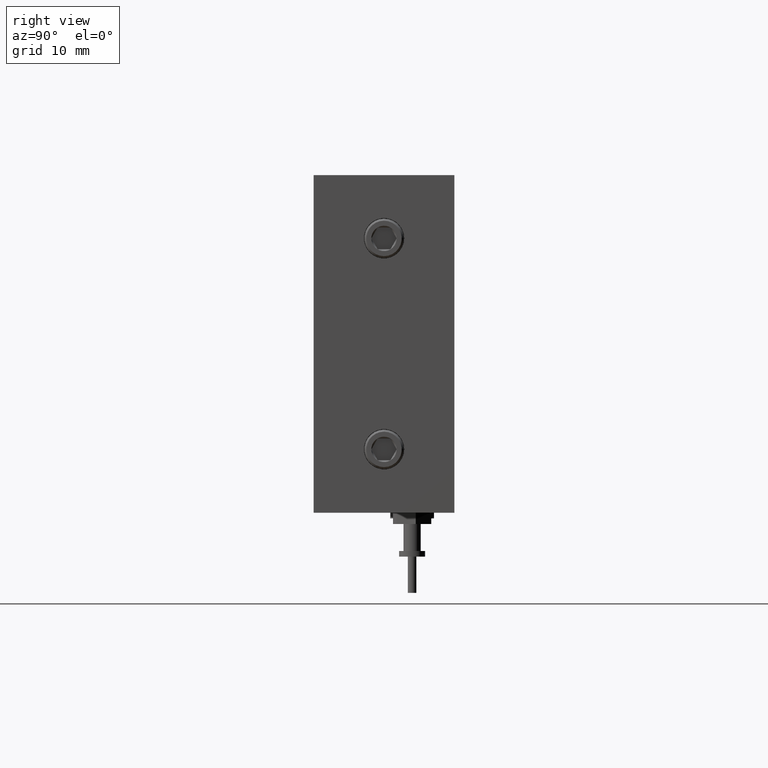
[diagram: clean part render]
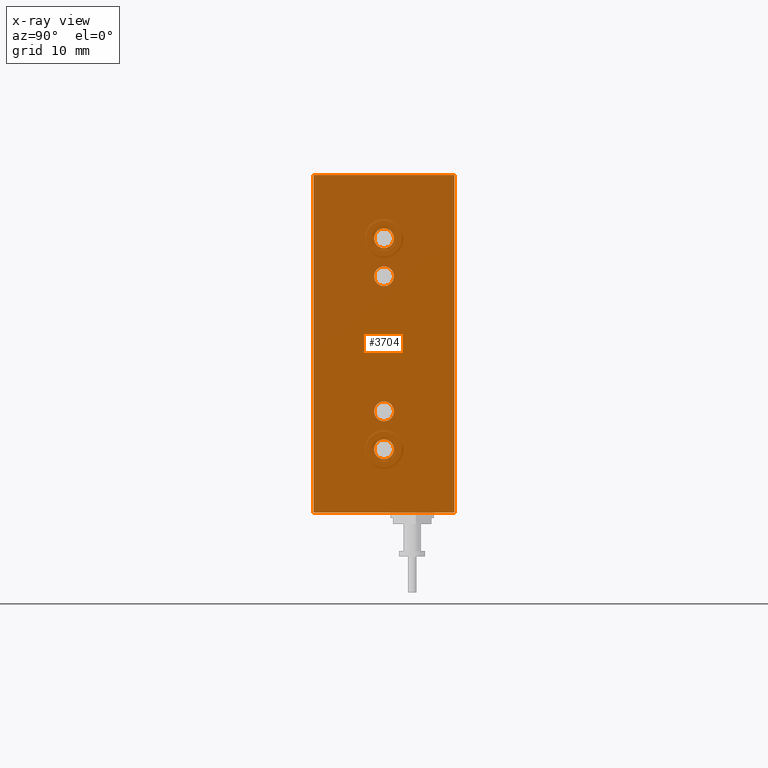
[diagram: x-ray — body ghosted, one internal face saturated and labeled with its STEP entity id]
A machine part, right view, then the same camera in x-ray: the body is ghosted and one INTERNAL B-rep face — a face not visible from any outside direction — is saturated and labeled: STEP entity #3704.
In plain terms, the highlighted planar face has unit normal (-1, 0, 0).
Its self-contained STEP definition (entity closure, byte-faithful):
#49 = VECTOR ( 'NONE', #12817, 39.37007874015748100 ) ;
#237 = VERTEX_POINT ( 'NONE', #6164 ) ;
#499 = DIRECTION ( 'NONE',  ( 0.0000000000000000000, 0.0000000000000000000, -1.000000000000000000 ) ) ;
#500 = FACE_BOUND ( 'NONE', #2911, .T. ) ;
#645 = AXIS2_PLACEMENT_3D ( 'NONE', #9324, #8239, #13479 ) ;
#700 = DIRECTION ( 'NONE',  ( 1.000000000000000000, -0.0000000000000000000, -0.0000000000000000000 ) ) ;
#703 = CARTESIAN_POINT ( 'NONE',  ( 0.5999999999999998700, 0.2499999999999999700, -0.2399999999999999900 ) ) ;
#764 = EDGE_CURVE ( 'NONE', #7626, #3858, #12314, .T. ) ;
#1061 = DIRECTION ( 'NONE',  ( 0.0000000000000000000, 0.0000000000000000000, -1.000000000000000000 ) ) ;
#1079 = ORIENTED_EDGE ( 'NONE', *, *, #8695, .F. ) ;
#1399 = VECTOR ( 'NONE', #13317, 39.37007874015748100 ) ;
#1448 = AXIS2_PLACEMENT_3D ( 'NONE', #10185, #1925, #4973 ) ;
#1542 = VECTOR ( 'NONE', #499, 39.37007874015748100 ) ;
#1565 = VERTEX_POINT ( 'NONE', #5831 ) ;
#1607 = EDGE_CURVE ( 'NONE', #10866, #10165, #11164, .T. ) ;
#1751 = DIRECTION ( 'NONE',  ( 1.000000000000000000, -0.0000000000000000000, -0.0000000000000000000 ) ) ;
#1884 = CIRCLE ( 'NONE', #13360, 0.03499999999999996900 ) ;
#1925 = DIRECTION ( 'NONE',  ( 1.000000000000000000, -0.0000000000000000000, -0.0000000000000000000 ) ) ;
#2144 = DIRECTION ( 'NONE',  ( 0.0000000000000000000, 0.0000000000000000000, -1.000000000000000000 ) ) ;
#2301 = DIRECTION ( 'NONE',  ( 1.000000000000000000, -0.0000000000000000000, -0.0000000000000000000 ) ) ;
#2522 = CIRCLE ( 'NONE', #8430, 0.03499999999999996900 ) ;
#2599 = ORIENTED_EDGE ( 'NONE', *, *, #6001, .F. ) ;
#2877 = DIRECTION ( 'NONE',  ( 1.000000000000000000, -0.0000000000000000000, -0.0000000000000000000 ) ) ;
#2911 = EDGE_LOOP ( 'NONE', ( #5608, #5330 ) ) ;
#3462 = CARTESIAN_POINT ( 'NONE',  ( 0.5999999999999999800, 0.5000000000000000000, 0.5999999999999996400 ) ) ;
#3627 = EDGE_CURVE ( 'NONE', #3858, #7626, #12716, .T. ) ;
#3704 = ADVANCED_FACE ( 'NONE', ( #9431, #12389, #3939, #500, #13363 ), #6249, .F. ) ;
#3790 = CARTESIAN_POINT ( 'NONE',  ( 0.5999999999999998700, 0.2500000000000001100, 0.3750000000000000600 ) ) ;
#3840 = CARTESIAN_POINT ( 'NONE',  ( 0.5999999999999998700, 0.2499999999999999700, -0.3400000000000000800 ) ) ;
#3858 = VERTEX_POINT ( 'NONE', #4206 ) ;
#3939 = FACE_BOUND ( 'NONE', #9576, .T. ) ;
#4205 = LINE ( 'NONE', #3462, #4529 ) ;
#4206 = CARTESIAN_POINT ( 'NONE',  ( 0.5999999999999998700, 0.2499999999999999700, -0.2749999999999999700 ) ) ;
#4235 = ORIENTED_EDGE ( 'NONE', *, *, #11667, .T. ) ;
#4529 = VECTOR ( 'NONE', #7614, 39.37007874015748100 ) ;
#4578 = CARTESIAN_POINT ( 'NONE',  ( 0.5999999999999998700, 0.2500000000000000000, 0.2749999999999999700 ) ) ;
#4726 = CARTESIAN_POINT ( 'NONE',  ( 0.5999999999999998700, 0.2499999999999999700, -0.2050000000000000400 ) ) ;
#4950 = VERTEX_POINT ( 'NONE', #11687 ) ;
#4973 = DIRECTION ( 'NONE',  ( 0.0000000000000000000, 0.0000000000000000000, -1.000000000000000000 ) ) ;
#5205 = DIRECTION ( 'NONE',  ( 0.0000000000000000000, 0.0000000000000000000, -1.000000000000000000 ) ) ;
#5213 = EDGE_CURVE ( 'NONE', #11670, #4950, #8381, .T. ) ;
#5238 = CARTESIAN_POINT ( 'NONE',  ( 0.5999999999999998700, 0.2499999999999999700, -0.2399999999999999900 ) ) ;
#5311 = LINE ( 'NONE', #9107, #1399 ) ;
#5330 = ORIENTED_EDGE ( 'NONE', *, *, #1607, .F. ) ;
#5432 = CARTESIAN_POINT ( 'NONE',  ( 0.5999999999999998700, 0.2499999999999999700, -0.3750000000000000600 ) ) ;
#5608 = ORIENTED_EDGE ( 'NONE', *, *, #12433, .F. ) ;
#5638 = CIRCLE ( 'NONE', #12658, 0.03499999999999996900 ) ;
#5831 = CARTESIAN_POINT ( 'NONE',  ( 0.5999999999999999800, 0.0000000000000000000, -0.6000000000000002000 ) ) ;
#5870 = CARTESIAN_POINT ( 'NONE',  ( 0.5999999999999998700, 0.2500000000000000000, 0.2399999999999999900 ) ) ;
#5984 = VERTEX_POINT ( 'NONE', #6952 ) ;
#6001 = EDGE_CURVE ( 'NONE', #4950, #11670, #2522, .T. ) ;
#6090 = DIRECTION ( 'NONE',  ( 1.000000000000000000, -0.0000000000000000000, -0.0000000000000000000 ) ) ;
#6129 = CIRCLE ( 'NONE', #1448, 0.03499999999999996900 ) ;
#6164 = CARTESIAN_POINT ( 'NONE',  ( 0.5999999999999998700, 0.2499999999999999700, -0.4099999999999999800 ) ) ;
#6249 = PLANE ( 'NONE',  #645 ) ;
#6558 = LINE ( 'NONE', #10733, #49 ) ;
#6775 = ORIENTED_EDGE ( 'NONE', *, *, #764, .F. ) ;
#6952 = CARTESIAN_POINT ( 'NONE',  ( 0.5999999999999999800, 0.0000000000000000000, 0.5999999999999996400 ) ) ;
#6980 = AXIS2_PLACEMENT_3D ( 'NONE', #5238, #12596, #2144 ) ;
#7002 = CARTESIAN_POINT ( 'NONE',  ( 0.5999999999999999800, 0.5000000000000000000, -0.6000000000000002000 ) ) ;
#7306 = ORIENTED_EDGE ( 'NONE', *, *, #3627, .F. ) ;
#7605 = AXIS2_PLACEMENT_3D ( 'NONE', #703, #1751, #9007 ) ;
#7614 = DIRECTION ( 'NONE',  ( -0.0000000000000000000, -1.000000000000000000, -0.0000000000000000000 ) ) ;
#7626 = VERTEX_POINT ( 'NONE', #4726 ) ;
#7711 = ORIENTED_EDGE ( 'NONE', *, *, #11147, .F. ) ;
#7859 = CARTESIAN_POINT ( 'NONE',  ( 0.5999999999999998700, 0.2500000000000000000, 0.2050000000000000400 ) ) ;
#7913 = EDGE_LOOP ( 'NONE', ( #7306, #6775 ) ) ;
#7946 = DIRECTION ( 'NONE',  ( 0.0000000000000000000, 0.0000000000000000000, -1.000000000000000000 ) ) ;
#7958 = DIRECTION ( 'NONE',  ( 0.0000000000000000000, 0.0000000000000000000, -1.000000000000000000 ) ) ;
#8014 = EDGE_CURVE ( 'NONE', #5984, #1565, #11162, .T. ) ;
#8239 = DIRECTION ( 'NONE',  ( -1.000000000000000000, 0.0000000000000000000, 0.0000000000000000000 ) ) ;
#8298 = ORIENTED_EDGE ( 'NONE', *, *, #10203, .F. ) ;
#8381 = CIRCLE ( 'NONE', #9715, 0.03499999999999996900 ) ;
#8430 = AXIS2_PLACEMENT_3D ( 'NONE', #12154, #6090, #7946 ) ;
#8583 = CARTESIAN_POINT ( 'NONE',  ( 0.5999999999999998700, 0.2500000000000001100, 0.4099999999999999800 ) ) ;
#8695 = EDGE_CURVE ( 'NONE', #13263, #1565, #6558, .T. ) ;
#8754 = EDGE_LOOP ( 'NONE', ( #2599, #13036 ) ) ;
#8862 = VERTEX_POINT ( 'NONE', #10345 ) ;
#8906 = CARTESIAN_POINT ( 'NONE',  ( 0.5999999999999999800, 0.0000000000000000000, 0.5999999999999996400 ) ) ;
#9007 = DIRECTION ( 'NONE',  ( 0.0000000000000000000, 0.0000000000000000000, -1.000000000000000000 ) ) ;
#9064 = EDGE_LOOP ( 'NONE', ( #10572, #1079, #9944, #4235 ) ) ;
#9107 = CARTESIAN_POINT ( 'NONE',  ( 0.5999999999999999800, 0.5000000000000000000, 0.5999999999999996400 ) ) ;
#9217 = VERTEX_POINT ( 'NONE', #3840 ) ;
#9324 = CARTESIAN_POINT ( 'NONE',  ( 0.5999999999999999800, 0.5000000000000000000, 0.5999999999999996400 ) ) ;
#9431 = FACE_OUTER_BOUND ( 'NONE', #9064, .T. ) ;
#9576 = EDGE_LOOP ( 'NONE', ( #8298, #7711 ) ) ;
#9715 = AXIS2_PLACEMENT_3D ( 'NONE', #3790, #2877, #5205 ) ;
#9944 = ORIENTED_EDGE ( 'NONE', *, *, #10620, .F. ) ;
#10090 = DIRECTION ( 'NONE',  ( 0.0000000000000000000, 0.0000000000000000000, -1.000000000000000000 ) ) ;
#10165 = VERTEX_POINT ( 'NONE', #7859 ) ;
#10185 = CARTESIAN_POINT ( 'NONE',  ( 0.5999999999999998700, 0.2500000000000000000, 0.2399999999999999900 ) ) ;
#10203 = EDGE_CURVE ( 'NONE', #237, #9217, #5638, .T. ) ;
#10345 = CARTESIAN_POINT ( 'NONE',  ( 0.5999999999999999800, 0.5000000000000000000, 0.5999999999999996400 ) ) ;
#10572 = ORIENTED_EDGE ( 'NONE', *, *, #8014, .T. ) ;
#10620 = EDGE_CURVE ( 'NONE', #8862, #13263, #5311, .T. ) ;
#10733 = CARTESIAN_POINT ( 'NONE',  ( 0.5999999999999999800, 0.5000000000000000000, -0.6000000000000002000 ) ) ;
#10866 = VERTEX_POINT ( 'NONE', #4578 ) ;
#11147 = EDGE_CURVE ( 'NONE', #9217, #237, #1884, .T. ) ;
#11162 = LINE ( 'NONE', #8906, #1542 ) ;
#11164 = CIRCLE ( 'NONE', #11550, 0.03499999999999996900 ) ;
#11550 = AXIS2_PLACEMENT_3D ( 'NONE', #5870, #700, #7958 ) ;
#11667 = EDGE_CURVE ( 'NONE', #8862, #5984, #4205, .T. ) ;
#11670 = VERTEX_POINT ( 'NONE', #8583 ) ;
#11687 = CARTESIAN_POINT ( 'NONE',  ( 0.5999999999999998700, 0.2500000000000001100, 0.3400000000000000800 ) ) ;
#12154 = CARTESIAN_POINT ( 'NONE',  ( 0.5999999999999998700, 0.2500000000000001100, 0.3750000000000000600 ) ) ;
#12244 = CARTESIAN_POINT ( 'NONE',  ( 0.5999999999999998700, 0.2499999999999999700, -0.3750000000000000600 ) ) ;
#12314 = CIRCLE ( 'NONE', #6980, 0.03499999999999996900 ) ;
#12335 = DIRECTION ( 'NONE',  ( 1.000000000000000000, -0.0000000000000000000, -0.0000000000000000000 ) ) ;
#12389 = FACE_BOUND ( 'NONE', #8754, .T. ) ;
#12433 = EDGE_CURVE ( 'NONE', #10165, #10866, #6129, .T. ) ;
#12596 = DIRECTION ( 'NONE',  ( 1.000000000000000000, -0.0000000000000000000, -0.0000000000000000000 ) ) ;
#12658 = AXIS2_PLACEMENT_3D ( 'NONE', #12244, #12335, #10090 ) ;
#12716 = CIRCLE ( 'NONE', #7605, 0.03499999999999996900 ) ;
#12817 = DIRECTION ( 'NONE',  ( -0.0000000000000000000, -1.000000000000000000, -0.0000000000000000000 ) ) ;
#13036 = ORIENTED_EDGE ( 'NONE', *, *, #5213, .F. ) ;
#13263 = VERTEX_POINT ( 'NONE', #7002 ) ;
#13317 = DIRECTION ( 'NONE',  ( 0.0000000000000000000, 0.0000000000000000000, -1.000000000000000000 ) ) ;
#13360 = AXIS2_PLACEMENT_3D ( 'NONE', #5432, #2301, #1061 ) ;
#13363 = FACE_BOUND ( 'NONE', #7913, .T. ) ;
#13479 = DIRECTION ( 'NONE',  ( 0.0000000000000000000, 0.0000000000000000000, 1.000000000000000000 ) ) ;